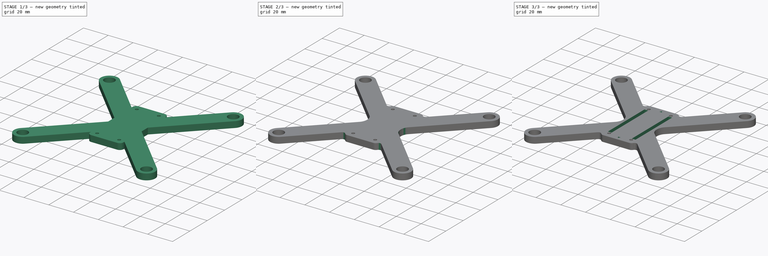
[diagram: build sequence overview — one tinted view per stage of 3, left to right]
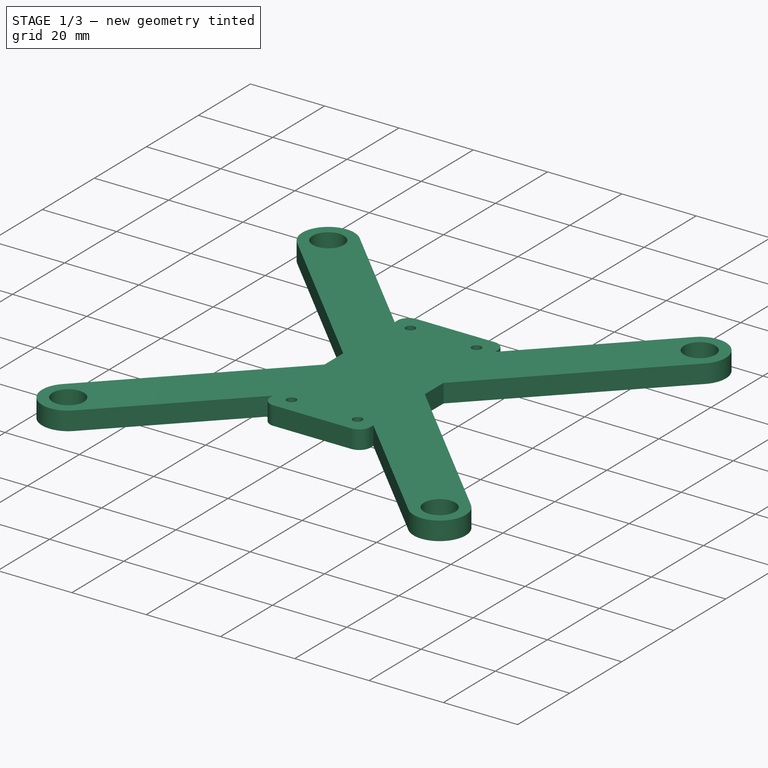
[diagram: stage 1 of 3 — iso view after this stage's code; geometry added in this stage tinted green]
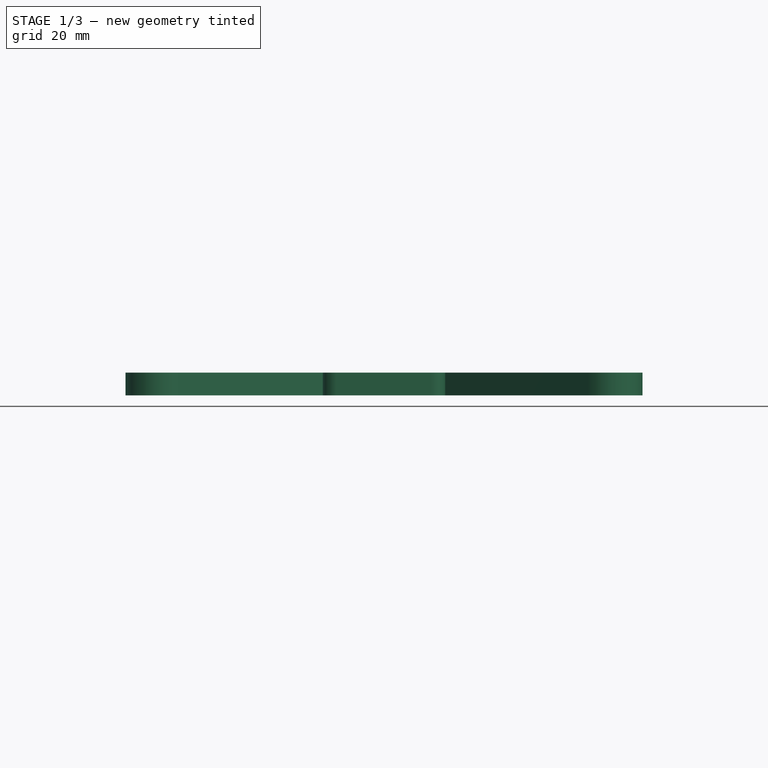
[diagram: stage 1 of 3 — front view after this stage's code; geometry added in this stage tinted green]
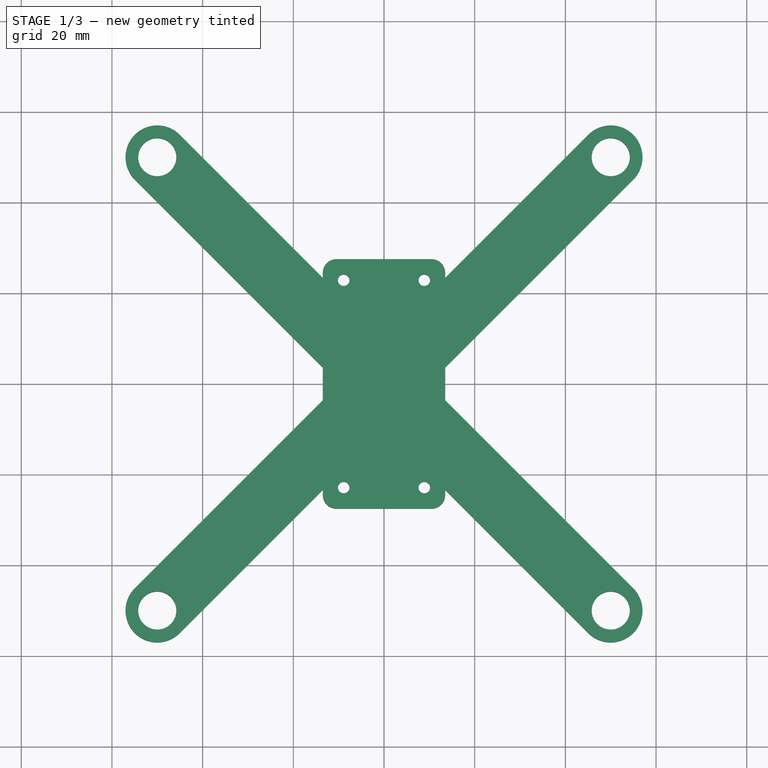
[diagram: stage 1 of 3 — top view after this stage's code; geometry added in this stage tinted green]
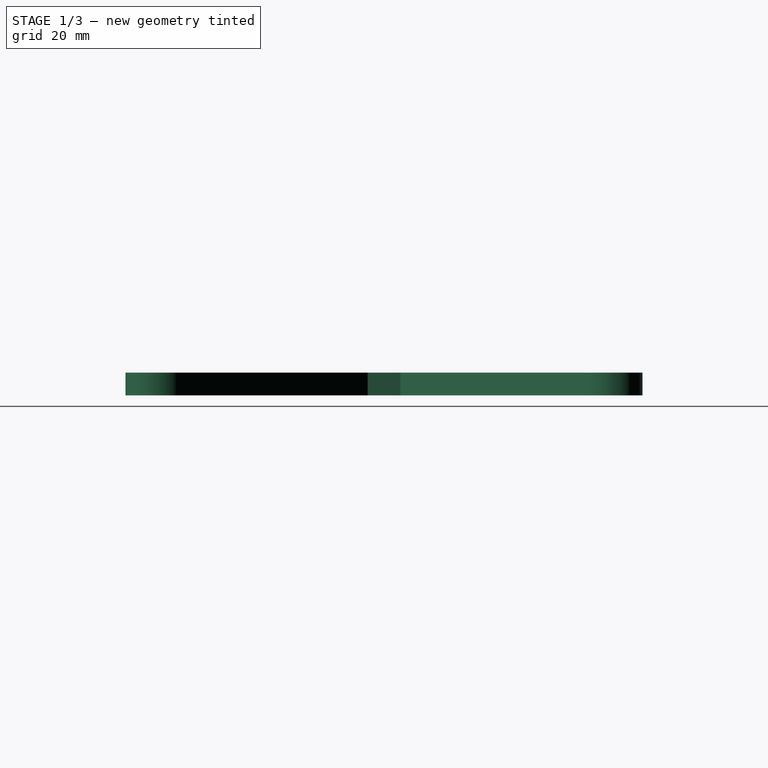
[diagram: stage 1 of 3 — right view after this stage's code; geometry added in this stage tinted green]
FCSTD DOCUMENT  (FreeCAD 0.16R6712 (Git))
Label: Frame
License: All rights reserved
LicenseURL: http://en.wikipedia.org/wiki/All_rights_reserved
objects: PartDesign::Fillet×3, Sketcher::SketchObject×2, App::DocumentObjectGroup×2, Part::Feature×1, Spreadsheet::Sheet×1, PartDesign::Pad×1, Part::FeaturePython×1, PartDesign::Pocket×1
note: 11 computed .brp shape members not serialized (recipe doc carries the construction recipe); baked Part::Feature solids carry a one-line shape summary decoded from their .brp

FEATURE [Part::Feature] Fusion002001  label="Boards"
  Placement = pos=(1.83124,0.098939,-4.28662) rot=(0,0,1;1.5708rad)
  shape: bbox 23.43 x 51.34 x 20.57 mm, 976 faces, 3 solids (baked)
FEATURE [Sketcher::SketchObject] Sketch  label="Frame001"
  expr: Constraints[34] = Spreadsheet.width
  expr: Constraints[35] = Spreadsheet.height
  expr: Constraints[18] = Spreadsheet.mrad + Spreadsheet.hoffset
  expr: Constraints[111] = Spreadsheet.armwidth
  expr: Constraints[105] = Spreadsheet.armwidth
  expr: Constraints[99] = Spreadsheet.armwidth
  expr: Constraints[58] = Spreadsheet.hoffset + 1.27
  expr: Constraints[93] = Spreadsheet.armwidth
  sketch-geometry (58):
    g0: LineSegment [constr] StartX=11.5 StartY=25.5 StartZ=0 EndX=-11.5 EndY=25.5 EndZ=0
    g1: LineSegment [constr] StartX=-11.5 StartY=25.5 StartZ=0 EndX=-11.5 EndY=-25.5 EndZ=0
    g2: LineSegment [constr] StartX=-11.5 StartY=-25.5 StartZ=0 EndX=11.5 EndY=-25.5 EndZ=0
    g3: LineSegment [constr] StartX=11.5 StartY=-25.5 StartZ=0 EndX=11.5 EndY=25.5 EndZ=0
    g4: LineSegment [constr] StartX=-11.5 StartY=25.5 StartZ=0 EndX=0 EndY=0 EndZ=0
    g5: LineSegment [constr] StartX=0 StartY=0 StartZ=0 EndX=11.5 EndY=25.5 EndZ=0
    g6: LineSegment [constr] StartX=0 StartY=0 StartZ=0 EndX=-11.5 EndY=-25.5 EndZ=0
    g7: Circle CenterX=-50 CenterY=50 CenterZ=0 NormalX=0 NormalY=0 NormalZ=1 Radius=4.2
    g8: LineSegment [constr] StartX=-50 StartY=50 StartZ=0 EndX=0 EndY=0 EndZ=0
    g9: Circle CenterX=-50 CenterY=-50 CenterZ=0 NormalX=0 NormalY=0 NormalZ=1 Radius=4.2
    g10: LineSegment [constr] StartX=-50 StartY=-50 StartZ=0 EndX=0 EndY=0 EndZ=0
    g11: Circle CenterX=50 CenterY=50 CenterZ=0 NormalX=0 NormalY=0 NormalZ=1 Radius=4.2
    g12: LineSegment [constr] StartX=50 StartY=50 StartZ=0 EndX=0 EndY=0 EndZ=0
    g13: Circle CenterX=50 CenterY=-50 CenterZ=0 NormalX=0 NormalY=0 NormalZ=1 Radius=4.2
    g14: LineSegment [constr] StartX=50 StartY=-50 StartZ=0 EndX=0 EndY=0 EndZ=0
    g15: LineSegment StartX=-13.5 StartY=27.5 StartZ=0 EndX=13.5 EndY=27.5 EndZ=0
    g16: LineSegment [constr] StartX=13.5 StartY=27.5 StartZ=0 EndX=13.5 EndY=-27.5 EndZ=0
    g17: LineSegment StartX=13.5 StartY=-27.5 StartZ=0 EndX=-13.5 EndY=-27.5 EndZ=0
    g18: LineSegment [constr] StartX=-13.5 StartY=-27.5 StartZ=0 EndX=-13.5 EndY=27.5 EndZ=0
    g19: LineSegment [constr] StartX=-13.5 StartY=27.5 StartZ=0 EndX=-11.5 EndY=25.5 EndZ=0
    g20: LineSegment [constr] StartX=13.5 StartY=27.5 StartZ=0 EndX=11.5 EndY=25.5 EndZ=0
    g21: LineSegment [constr] StartX=-11.5 StartY=-25.5 StartZ=0 EndX=-13.5 EndY=-27.5 EndZ=0
    g22: LineSegment [constr] StartX=11.5 StartY=25.5 StartZ=0 EndX=13.5 EndY=25.5 EndZ=0
    g23: LineSegment [constr] StartX=11.5 StartY=25.5 StartZ=0 EndX=11.5 EndY=27.5 EndZ=0
    g24: Circle CenterX=-8.89 CenterY=22.86 CenterZ=0 NormalX=0 NormalY=0 NormalZ=1 Radius=1.27
    g25: Circle CenterX=-8.89 CenterY=-22.86 CenterZ=0 NormalX=0 NormalY=0 NormalZ=1 Radius=1.27
    g26: Circle CenterX=8.89 CenterY=-22.86 CenterZ=0 NormalX=0 NormalY=0 NormalZ=1 Radius=1.27
    g27: Circle CenterX=8.89 CenterY=22.86 CenterZ=0 NormalX=0 NormalY=0 NormalZ=1 Radius=1.27
    g28: LineSegment [constr] StartX=-8.89 StartY=22.86 StartZ=0 EndX=8.89 EndY=22.86 EndZ=0
    g29: LineSegment [constr] StartX=8.89 StartY=22.86 StartZ=0 EndX=8.89 EndY=-22.86 EndZ=0
    g30: LineSegment [constr] StartX=8.89 StartY=-22.86 StartZ=0 EndX=-8.89 EndY=-22.86 EndZ=0
    g31: LineSegment [constr] StartX=-8.89 StartY=-22.86 StartZ=0 EndX=-8.89 EndY=22.86 EndZ=0
    g32: LineSegment [constr] StartX=-11.5 StartY=25.5 StartZ=0 EndX=-8.89 EndY=22.86 EndZ=0
    g33: LineSegment [constr] StartX=8.89 StartY=22.86 StartZ=0 EndX=11.5 EndY=25.5 EndZ=0
    g34: LineSegment [constr] StartX=8.89 StartY=-22.86 StartZ=0 EndX=11.5 EndY=-25.5 EndZ=0
    g35: LineSegment StartX=-54.9497 StartY=45.0503 StartZ=0 EndX=-13.5 EndY=3.60051 EndZ=0
    g36: LineSegment StartX=-45.0503 StartY=54.9497 StartZ=0 EndX=-13.5 EndY=23.3995 EndZ=0
    g37: ArcOfCircle CenterX=-50 CenterY=50 CenterZ=0 NormalX=0 NormalY=0 NormalZ=1 Radius=7 StartAngle=0.785398 EndAngle=3.92699
    g38: LineSegment [constr] StartX=-54.9497 StartY=45.0503 StartZ=0 EndX=-45.0503 EndY=54.9497 EndZ=0
    g39: LineSegment StartX=54.9497 StartY=45.0503 StartZ=0 EndX=13.5 EndY=3.60051 EndZ=0
    g40: ArcOfCircle CenterX=50 CenterY=50 CenterZ=0 NormalX=0 NormalY=0 NormalZ=1 Radius=7 StartAngle=5.49779 EndAngle=8.63938
    g41: LineSegment StartX=45.0503 StartY=54.9497 StartZ=0 EndX=13.5 EndY=23.3995 EndZ=0
    g42: LineSegment [constr] StartX=45.0503 StartY=54.9497 StartZ=0 EndX=54.9497 EndY=45.0503 EndZ=0
    g43: LineSegment StartX=45.0503 StartY=-54.9497 StartZ=0 EndX=13.5 EndY=-23.3995 EndZ=0
    g44: ArcOfCircle CenterX=50 CenterY=-50 CenterZ=0 NormalX=0 NormalY=0 NormalZ=1 Radius=7 StartAngle=3.92699 EndAngle=7.06858
    g45: LineSegment StartX=54.9497 StartY=-45.0503 StartZ=0 EndX=13.5 EndY=-3.60051 EndZ=0
    g46: LineSegment [constr] StartX=54.9497 StartY=-45.0503 StartZ=0 EndX=45.0503 EndY=-54.9497 EndZ=0
    g47: LineSegment StartX=-54.9497 StartY=-45.0503 StartZ=0 EndX=-13.5 EndY=-3.60051 EndZ=0
    g48: ArcOfCircle CenterX=-50 CenterY=-50 CenterZ=0 NormalX=0 NormalY=0 NormalZ=1 Radius=7 StartAngle=2.35619 EndAngle=5.49779
    g49: LineSegment StartX=-45.0503 StartY=-54.9497 StartZ=0 EndX=-13.5 EndY=-23.3995 EndZ=0
    g50: LineSegment [constr] StartX=-45.0503 StartY=-54.9497 StartZ=0 EndX=-54.9497 EndY=-45.0503 EndZ=0
    g51: LineSegment StartX=-13.5 StartY=27.5 StartZ=0 EndX=-13.5 EndY=23.3995 EndZ=0
    g52: LineSegment StartX=-13.5 StartY=3.60051 StartZ=0 EndX=-13.5 EndY=-3.60051 EndZ=0
    g53: LineSegment StartX=13.5 StartY=-3.60051 StartZ=0 EndX=13.5 EndY=3.60051 EndZ=0
    g54: LineSegment StartX=13.5 StartY=-23.3995 StartZ=0 EndX=13.5 EndY=-27.5 EndZ=0
    g55: LineSegment StartX=13.5 StartY=27.5 StartZ=0 EndX=13.5 EndY=23.3995 EndZ=0
    g56: LineSegment StartX=-13.5 StartY=-23.3995 StartZ=0 EndX=-13.5 EndY=-27.5 EndZ=0
    g57: LineSegment [constr] StartX=11.5 StartY=-25.5 StartZ=0 EndX=13.5 EndY=-27.5 EndZ=0
  constraints (148):
    c: Coincident(g0,g1)
    c: Coincident(g1,g2)
    c: Coincident(g2,g3)
    c: Coincident(g3,g0)
    c: Horizontal(g0)
    c: Horizontal(g2)
    c: Vertical(g1)
    c: Vertical(g3)
    c: DistanceX(g0,g0) = 23
    c: DistanceY(g3,g3) = 51
    c: Coincident(g4,g0)
    c: Coincident(g5,g-1)
    c: Coincident(g5,g0)
    c: Coincident(g6,g-1)
    c: Coincident(g6,g1)
    c: Equal(g5,g4)
    c: Equal(g4,g6)
    c: Coincident(g4,g-1)
    c: Radius(g7) = 4.2
    c: Coincident(g8,g-1)
    c: Coincident(g8,g7)
    c: Equal(g7,g9) = 8
    c: Coincident(g10,g9)
    c: Coincident(g12,g11)
    c: Coincident(g14,g13)
    c: Coincident(g14,g12)
    c: Coincident(g14,g10)
    c: Coincident(g14,g-1)
    c: Equal(g10,g12)
    c: Equal(g13,g7)
    c: Equal(g9,g11)
    c: Symmetric(g13,g11,g-1)
    c: Symmetric(g7,g9,g-1)
    c: Symmetric(g7,g11,g-2)
    c: DistanceX(g7,g11) = 100
    c: DistanceY(g9,g7) = 100
    c: Coincident(g15,g16)
    c: Coincident(g16,g17)
    c: Coincident(g17,g18)
    c: Coincident(g18,g15)
    c: Horizontal(g15)
    c: Horizontal(g17)
    c: Coincident(g19,g15)
    c: Coincident(g19,g0)
    c: Coincident(g20,g15)
    c: Coincident(g20,g0)
    c: Coincident(g21,g1)
    c: Coincident(g21,g17)
    c: Equal(g21,g19)
    c: Equal(g19,g20)
    c: Coincident(g22,g0)
    c: PointOnObject(g22,g16)
    c: Horizontal(g22)
    c: Coincident(g23,g0)
    c: PointOnObject(g23,g15)
    c: Vertical(g23)
    c: Equal(g22,g23)
    c: DistanceX(g22,g22) = 2
    c: Radius(g24) = 1.27
    c: Equal(g24,g25) = 1.27
    c: Equal(g27,g24)
    c: Equal(g25,g26)
    c: DistanceX(g24,g27) = 17.78
    c: DistanceY(g25,g24) = 45.72
    c: Coincident(g28,g29)
    c: Coincident(g29,g30)
    c: Coincident(g30,g31)
    c: Coincident(g31,g28)
    c: Horizontal(g28)
    c: Horizontal(g30)
    c: Vertical(g29)
    c: Vertical(g31)
    c: Coincident(g28,g24)
    c: Coincident(g29,g26)
    c: Coincident(g30,g25)
    c: Coincident(g27,g28)
    c: Coincident(g32,g24)
    c: Coincident(g33,g27)
    c: Coincident(g33,g0)
    c: Coincident(g34,g26)
    c: Coincident(g34,g2)
    c: Equal(g34,g33)
    c: Equal(g33,g32)
    c: PointOnObject(g35,g18)
    c: PointOnObject(g36,g18)
    c: Parallel(g36,g8)
    c: Parallel(g8,g35)
    c: Coincident(g37,g7)
    c: Coincident(g37,g35)
    c: Coincident(g36,g37)
    c: Coincident(g38,g35)
    c: Coincident(g38,g36)
    c: PointOnObject(g7,g38)
    c: Distance(g35,g36) = 14
    c: Angle(g38,g36) = 1.5708
    c: Coincident(g40,g41)
    c: Coincident(g39,g40)
    c: Coincident(g42,g41)
    c: Coincident(g42,g39)
    c: Distance(g41,g39) = 14
    c: Angle(g42,g39) = 1.5708
    c: Coincident(g44,g45)
    c: Coincident(g43,g44)
    c: Coincident(g46,g45)
    c: Coincident(g46,g43)
    c: Distance(g45,g43) = 14
    c: Angle(g46,g43) = 1.5708
    c: Coincident(g48,g49)
    c: Coincident(g47,g48)
    c: Coincident(g50,g49)
    c: Coincident(g50,g47)
    c: Distance(g49,g47) = 14
    c: Angle(g50,g47) = 1.5708
    c: PointOnObject(g39,g16)
    c: PointOnObject(g41,g16)
    c: Parallel(g39,g41)
    c: Parallel(g41,g12)
    c: Coincident(g40,g11)
    c: PointOnObject(g11,g42)
    c: PointOnObject(g45,g16)
    c: PointOnObject(g43,g16)
    c: Coincident(g44,g13)
    c: PointOnObject(g13,g46)
    c: Parallel(g45,g14)
    c: Parallel(g14,g43)
    c: PointOnObject(g47,g18)
    c: PointOnObject(g49,g18)
    c: Coincident(g48,g9)
    c: PointOnObject(g9,g50)
    c: Parallel(g49,g47)
    c: Parallel(g47,g10)
    c: Coincident(g32,g0)
    c: Coincident(g51,g15)
    c: Coincident(g51,g36)
    c: Vertical(g51)
    c: Coincident(g52,g35)
    c: Coincident(g52,g47)
    c: Coincident(g53,g45)
    c: Coincident(g53,g39)
    c: Coincident(g54,g43)
    c: Coincident(g54,g16)
    c: Coincident(g55,g15)
    c: Coincident(g55,g41)
    c: Coincident(g56,g49)
    c: Coincident(g56,g17)
    c: Coincident(g57,g2)
    c: Coincident(g57,g16)
    c: Parallel(g57,g19)
FEATURE [Spreadsheet::Sheet] Spreadsheet
  cells = A1=Frame Options; A2=Width (shaft-to-shaft); B2(width)=100; A3=Height (shaft-to-shaft); B3(height)=100; A4=Thickness; B4(thickness)=5; A5=Arm Width; B5(armwidth)=14; A9=Part Sizes; A10=Motor Radius; B10(mrad)=4.2; A15=Hole Size Offset; B15(hoffset)=0
FEATURE [PartDesign::Pad] Pad
  Length = 5
  Length2 = 100
  Sketch = -> Sketch
  Type = 0
  expr: Length = Spreadsheet.thickness
FEATURE [PartDesign::Fillet] Fillet
  Base = -> Pad [Edge35,Edge38,Edge8,Edge5]
  Radius = 3
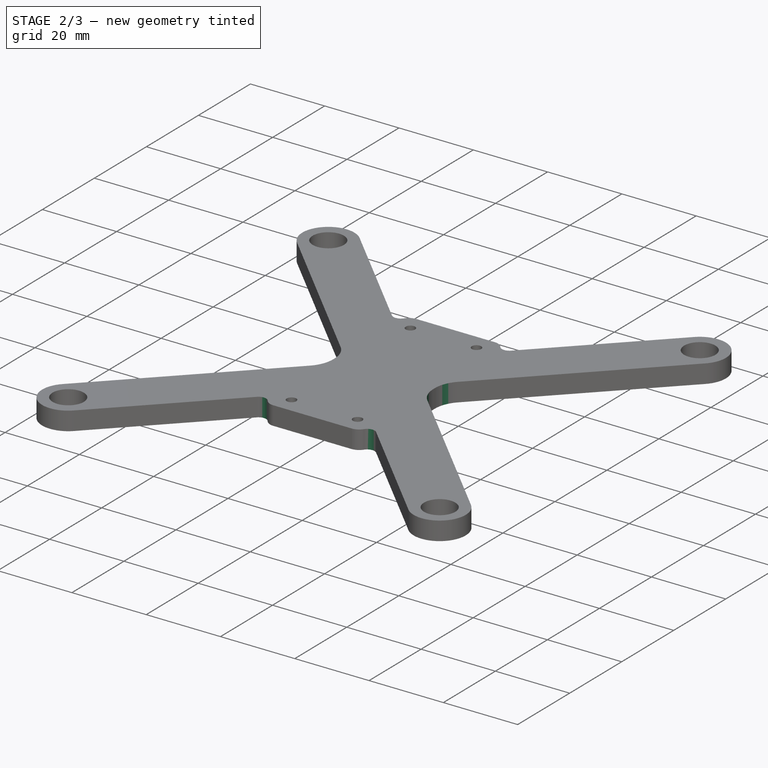
[diagram: stage 2 of 3 — iso view after this stage's code; geometry added in this stage tinted green]
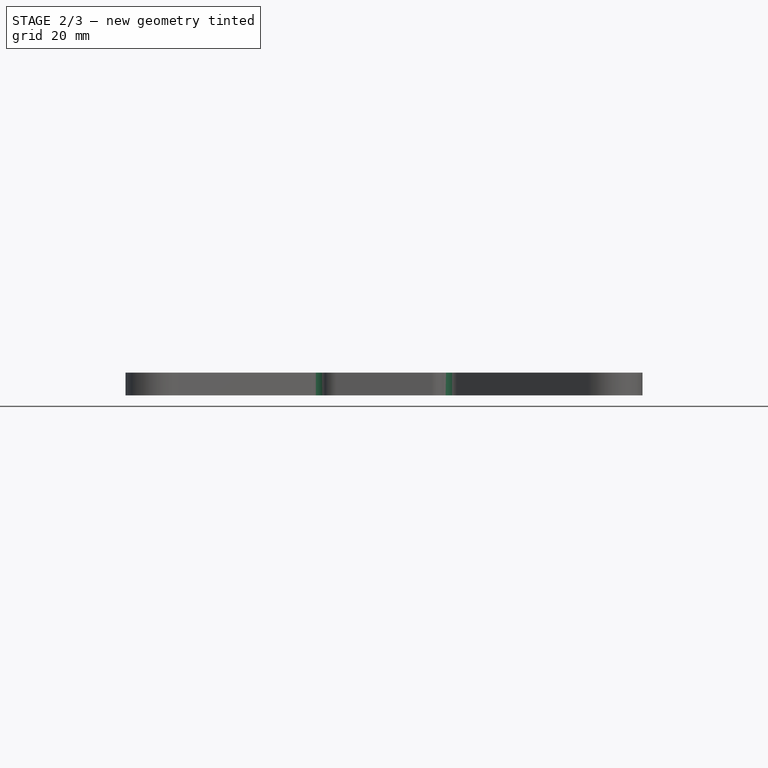
[diagram: stage 2 of 3 — front view after this stage's code; geometry added in this stage tinted green]
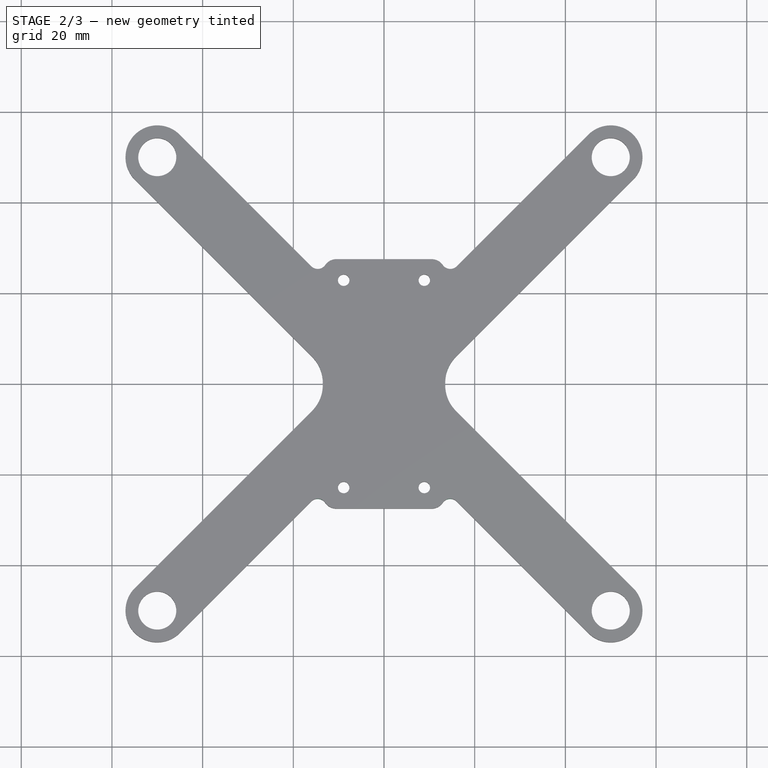
[diagram: stage 2 of 3 — top view after this stage's code; geometry added in this stage tinted green]
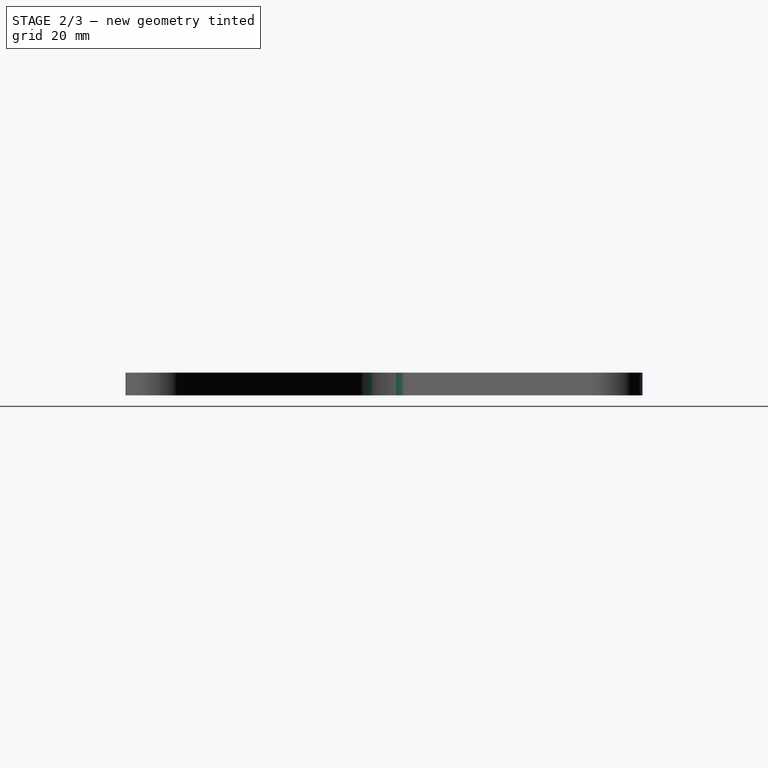
[diagram: stage 2 of 3 — right view after this stage's code; geometry added in this stage tinted green]
FEATURE [PartDesign::Fillet] Fillet001
  Base = -> Fillet [Edge74,Edge72,Edge81,Edge79]
  Radius = 8
FEATURE [PartDesign::Fillet] Fillet002  label="Frame"
  Base = -> Fillet001 [Edge60,Edge80,Edge66,Edge46]
  Radius = 2
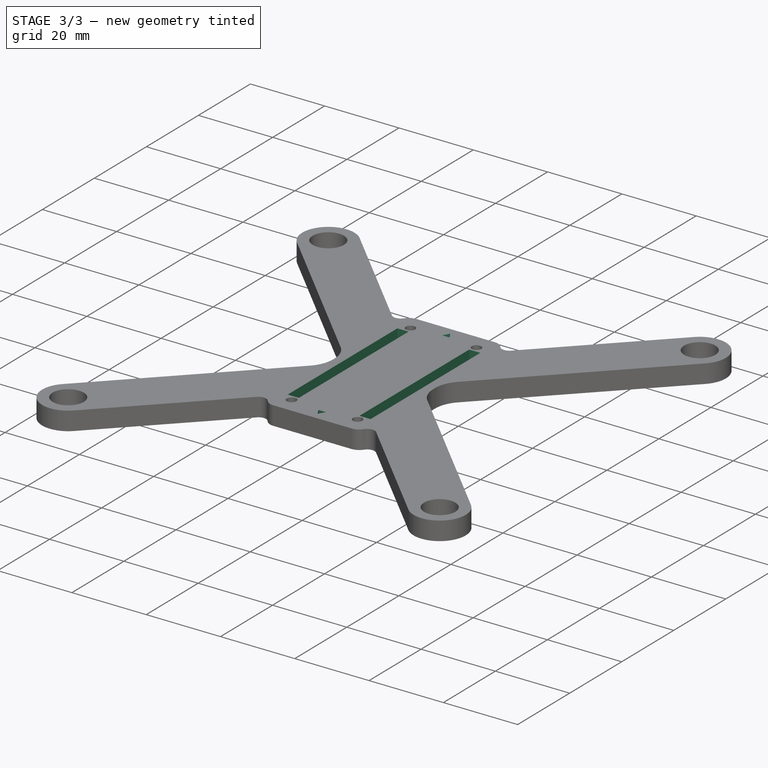
[diagram: stage 3 of 3 — iso view after this stage's code; geometry added in this stage tinted green]
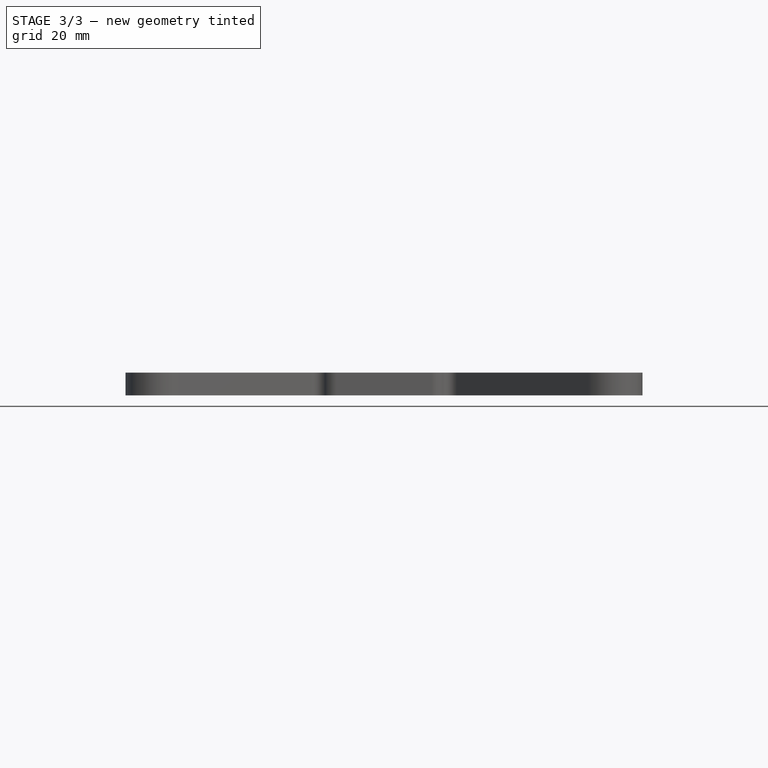
[diagram: stage 3 of 3 — front view after this stage's code; geometry added in this stage tinted green]
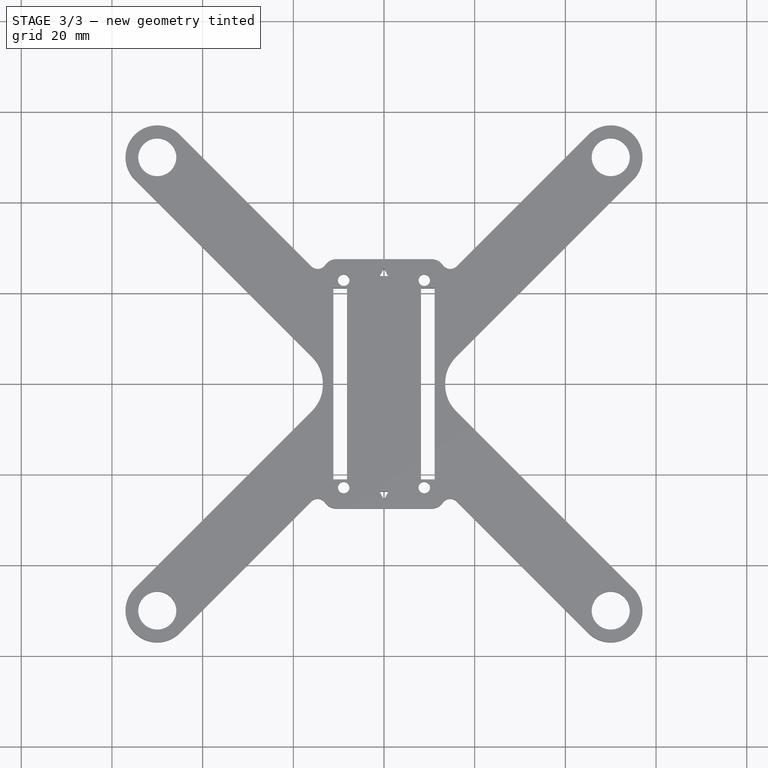
[diagram: stage 3 of 3 — top view after this stage's code; geometry added in this stage tinted green]
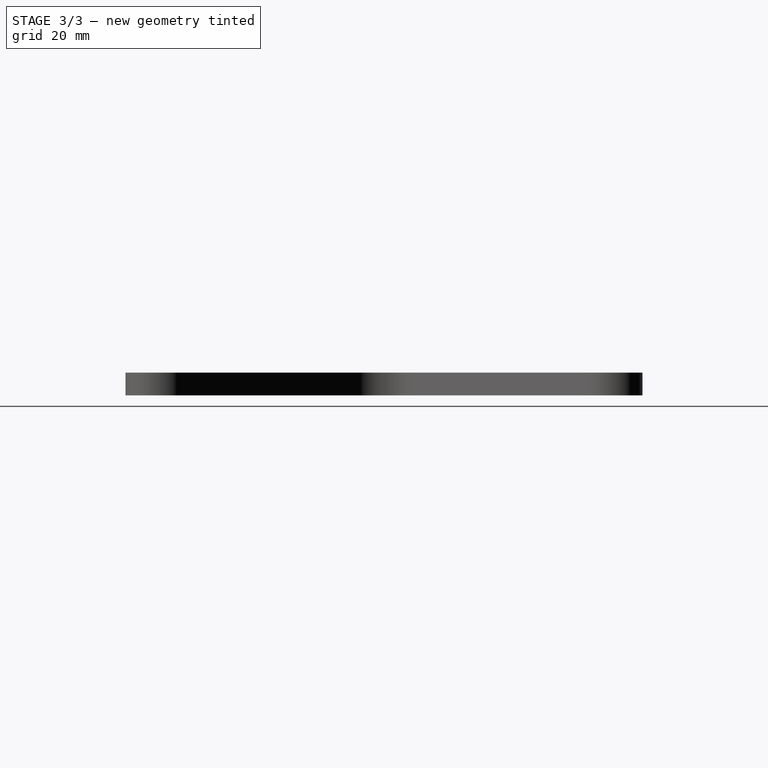
[diagram: stage 3 of 3 — right view after this stage's code; geometry added in this stage tinted green]
FEATURE [App::DocumentObjectGroup] Group  label="Frame1"
  Group = -> [Pad,Fillet,Fillet001,Fillet002]
FEATURE [Part::FeaturePython] Clone  label="CFrameV1"  # Draft clone (typed FeaturePython)
  Objects = -> [Fillet002]
  Scale = (1,1,1)
FEATURE [Sketcher::SketchObject] Sketch001  label="holes"
  ExternalGeometry = -> [Fillet002]
  Placement = pos=(0,0,5) rot=(0,0,1;0rad)
  Support = -> Clone [Face38]
  sketch-geometry (26):
    g0: LineSegment StartX=8.16 StartY=21.09 StartZ=0 EndX=11.16 EndY=21.09 EndZ=0
    g1: LineSegment StartX=11.16 StartY=21.09 StartZ=0 EndX=11.16 EndY=-21.09 EndZ=0
    g2: LineSegment StartX=11.16 StartY=-21.09 StartZ=0 EndX=8.16 EndY=-21.09 EndZ=0
    g3: LineSegment StartX=8.16 StartY=-21.09 StartZ=0 EndX=8.16 EndY=21.09 EndZ=0
    g4: LineSegment [constr] StartX=8.89 StartY=22.86 StartZ=0 EndX=10.16 EndY=22.86 EndZ=0
    g5: LineSegment [constr] StartX=8.89 StartY=22.86 StartZ=0 EndX=8.89 EndY=21.59 EndZ=0
    g6: LineSegment [constr] StartX=8.89 StartY=-22.86 StartZ=0 EndX=8.89 EndY=-21.59 EndZ=0
    g7: LineSegment [constr] StartX=-8.89 StartY=-22.86 StartZ=0 EndX=-8.89 EndY=-21.59 EndZ=0
    g8: LineSegment [constr] StartX=-8.89 StartY=22.86 StartZ=0 EndX=-10.16 EndY=22.86 EndZ=0
    g9: LineSegment [constr] StartX=-8.89 StartY=22.86 StartZ=0 EndX=-8.89 EndY=21.59 EndZ=0
    g10: LineSegment StartX=-11.16 StartY=21.09 StartZ=0 EndX=-8.16 EndY=21.09 EndZ=0
    g11: LineSegment StartX=-8.16 StartY=21.09 StartZ=0 EndX=-8.16 EndY=-21.09 EndZ=0
    g12: LineSegment StartX=-8.16 StartY=-21.09 StartZ=0 EndX=-11.16 EndY=-21.09 EndZ=0
    g13: LineSegment StartX=-11.16 StartY=-21.09 StartZ=0 EndX=-11.16 EndY=21.09 EndZ=0
    g14: LineSegment [constr] StartX=-8.89 StartY=22.86 StartZ=0 EndX=-1 EndY=23.7679 EndZ=0
    g15: LineSegment [constr] StartX=1 StartY=23.7679 StartZ=0 EndX=8.89 EndY=22.86 EndZ=0
    g16: LineSegment StartX=-1 StartY=23.7679 StartZ=0 EndX=1 EndY=23.7679 EndZ=0
    g17: LineSegment StartX=1 StartY=23.7679 StartZ=0 EndX=0 EndY=25.5 EndZ=0
    g18: LineSegment StartX=0 StartY=25.5 StartZ=0 EndX=-1 EndY=23.7679 EndZ=0
    g19: Circle [constr] CenterX=0 CenterY=24.3453 CenterZ=0 NormalX=0 NormalY=0 NormalZ=1 Radius=1.1547
    g20: LineSegment [constr] StartX=1 StartY=-23.7679 StartZ=0 EndX=8.89 EndY=-22.86 EndZ=0
    g21: LineSegment [constr] StartX=-1 StartY=-23.7679 StartZ=0 EndX=-8.89 EndY=-22.86 EndZ=0
    g22: LineSegment StartX=0 StartY=-25.5 StartZ=0 EndX=1 EndY=-23.7679 EndZ=0
    g23: LineSegment StartX=1 StartY=-23.7679 StartZ=0 EndX=-1 EndY=-23.7679 EndZ=0
    g24: LineSegment StartX=-1 StartY=-23.7679 StartZ=0 EndX=0 EndY=-25.5 EndZ=0
    g25: Circle [constr] CenterX=0 CenterY=-24.3453 CenterZ=0 NormalX=0 NormalY=0 NormalZ=1 Radius=1.1547
  constraints (74):
    c: Coincident(g0,g1)
    c: Coincident(g1,g2)
    c: Coincident(g2,g3)
    c: Coincident(g3,g0)
    c: Horizontal(g0)
    c: Horizontal(g2)
    c: Vertical(g1)
    c: Vertical(g3)
    c: Horizontal(g4)
    c: Coincident(g5,g4)
    c: Vertical(g5)
    c: DistanceX(g4,g0) = 1
    c: DistanceY(g0,g5) = 0.5
    c: Vertical(g6)
    c: DistanceY(g6,g1) = 0.5
    c: Vertical(g7)
    c: Horizontal(g8)
    c: Coincident(g9,g8)
    c: Vertical(g9)
    c: DistanceX(g0,g0) = 3
    c: Coincident(g10,g11)
    c: Coincident(g11,g12)
    c: Coincident(g12,g13)
    c: Coincident(g13,g10)
    c: Horizontal(g10)
    c: Horizontal(g12)
    c: Vertical(g11)
    c: Vertical(g13)
    c: DistanceY(g10,g9) = 0.5
    c: DistanceX(g10,g8) = 1
    c: DistanceY(g7,g12) = 0.5
    c: DistanceX(g10,g10) = 3
    c: Coincident(g14,g8)
    c: Coincident(g15,g4)
    c: Equal(g14,g15)
    c: Coincident(g16,g17)
    c: Coincident(g17,g18)
    c: Coincident(g18,g16)
    c: Equal(g16,g17)
    c: Equal(g16,g18)
    c: PointOnObject(g16,g19)
    c: PointOnObject(g17,g19)
    c: PointOnObject(g18,g19)
    c: PointOnObject(g19,g-2)
    c: Coincident(g18,g14)
    c: Coincident(g16,g15)
    c: Distance(g17) = 2
    c: Coincident(g20,g6)
    c: Coincident(g21,g7)
    c: Coincident(g22,g23)
    c: Coincident(g23,g24)
    c: Coincident(g24,g22)
    c: Equal(g22,g23)
    c: Equal(g22,g24)
    c: PointOnObject(g22,g25)
    c: PointOnObject(g23,g25)
    c: PointOnObject(g24,g25)
    c: Coincident(g20,g22)
    c: Coincident(g21,g23)
    c: Equal(g20,g21)
    c: PointOnObject(g25,g-2)
    c: Distance(g22) = 2
    c: PointOnObject(g8,g-3)
    c: PointOnObject(g9,g-3)
    c: Coincident(g-3,g8)
    c: PointOnObject(g7,g-6)
    c: Coincident(g7,g-6)
    c: Coincident(g6,g-5)
    c: PointOnObject(g6,g-5)
    c: PointOnObject(g5,g-4)
    c: PointOnObject(g4,g-4)
    c: Coincident(g-4,g4)
    c: DistanceY(g17,g-7) = 2
    c: DistanceY(g-8,g22) = 2
FEATURE [PartDesign::Pocket] Pocket  label="FrameV1.0.4"
  Length = 10
  Sketch = -> Sketch001
  Type = 0
FEATURE [App::DocumentObjectGroup] Group001  label="Frame1.0.2"
  Group = -> [Group,Clone,Pocket]
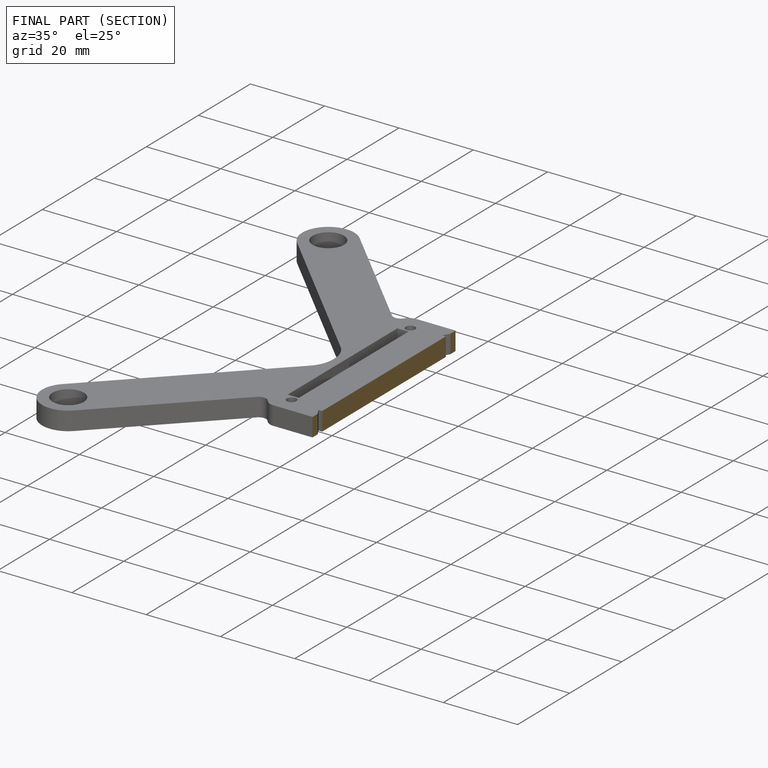
[diagram: finished part — half-section view (interior)]
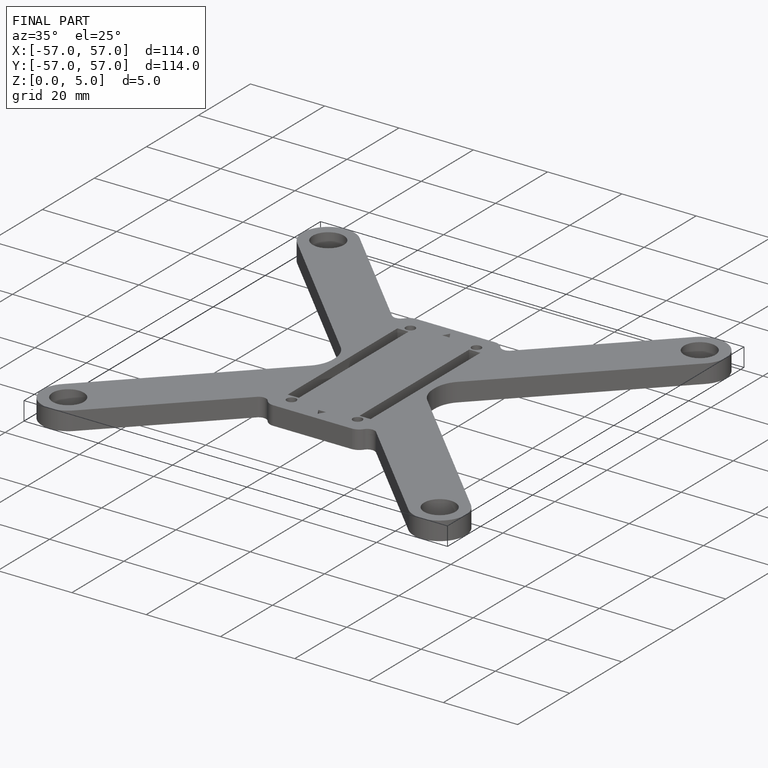
[diagram: finished part — iso view with bounding-box wireframe]
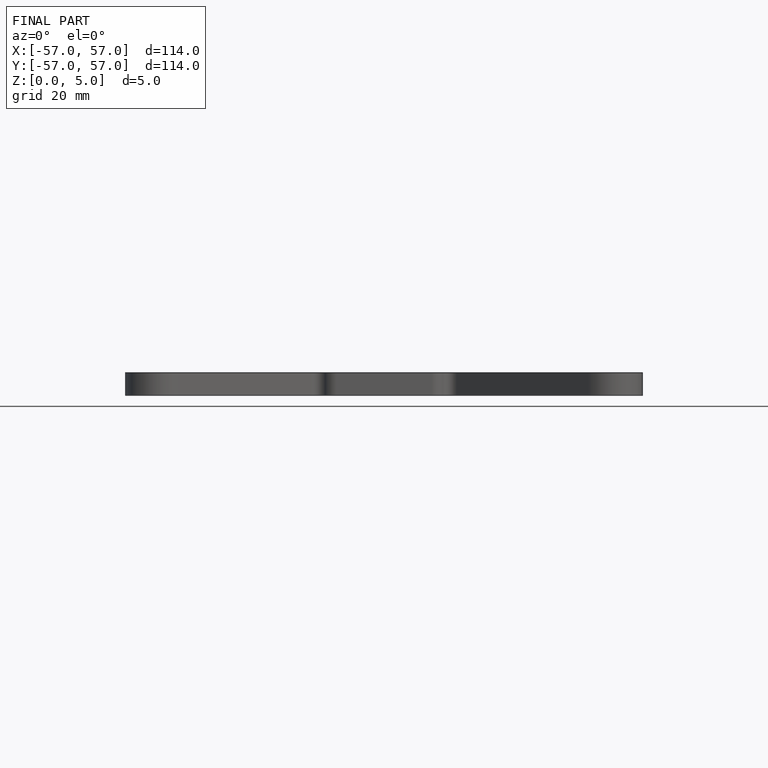
[diagram: finished part — front view with bounding-box wireframe]
